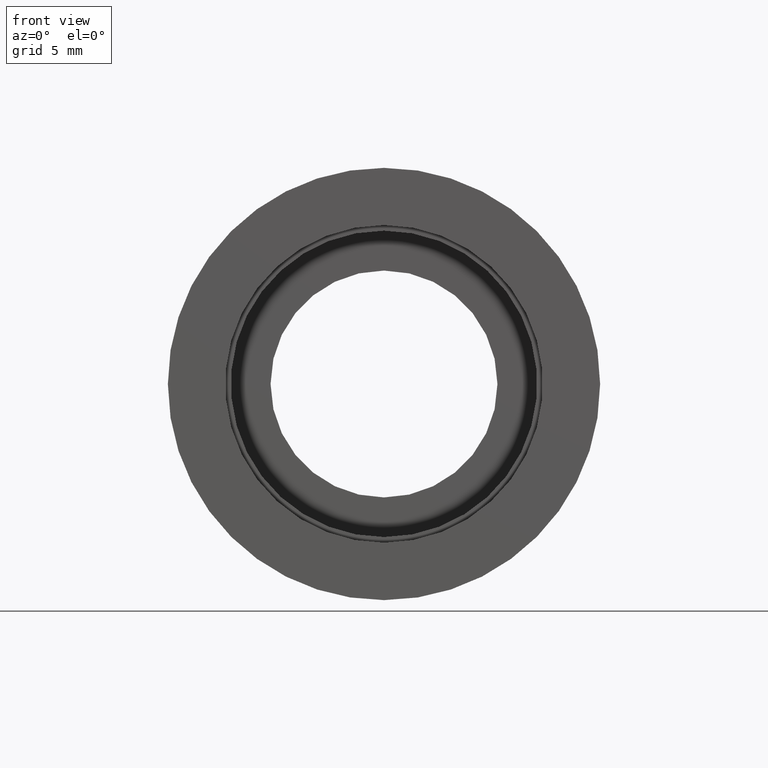
[diagram: clean part render]
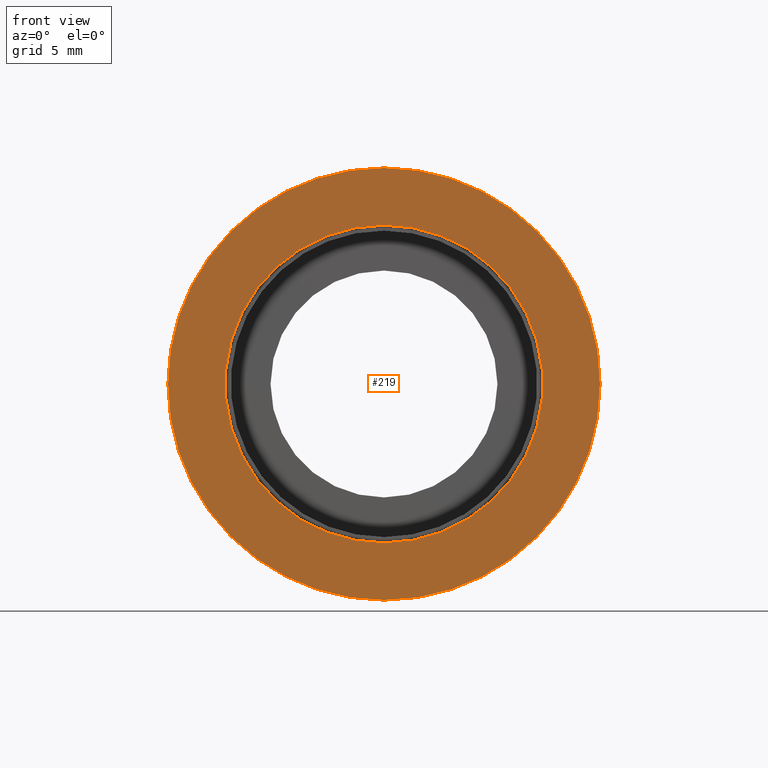
[diagram: same view with one face highlighted and labeled with its STEP entity id]
A machine part, front view. The second image highlights one B-rep face of the part: STEP entity #219.
In plain terms, the highlighted planar face has unit normal (-0, 1, 0).
Its self-contained STEP definition (entity closure, byte-faithful):
#15 = CIRCLE ( 'NONE', #250, 9.525000000000019895 ) ;
#21 = CIRCLE ( 'NONE', #111, 9.525000000000019895 ) ;
#22 = CARTESIAN_POINT ( 'NONE',  ( 0.000000000000000000, -2.775557561562891351E-14, 0.000000000000000000 ) ) ;
#38 = EDGE_LOOP ( 'NONE', ( #317, #242 ) ) ;
#43 = DIRECTION ( 'NONE',  ( 0.000000000000000000, 0.000000000000000000, 1.000000000000000000 ) ) ;
#46 = CARTESIAN_POINT ( 'NONE',  ( 0.000000000000000000, -2.775557561562891351E-14, 0.000000000000000000 ) ) ;
#62 = CARTESIAN_POINT ( 'NONE',  ( 0.000000000000000000, -2.775557561562891351E-14, 7.000000000000020428 ) ) ;
#70 = CIRCLE ( 'NONE', #629, 7.000000000000020428 ) ;
#102 = DIRECTION ( 'NONE',  ( 0.000000000000000000, 0.000000000000000000, 1.000000000000000000 ) ) ;
#111 = AXIS2_PLACEMENT_3D ( 'NONE', #321, #619, #442 ) ;
#121 = CIRCLE ( 'NONE', #189, 7.000000000000020428 ) ;
#122 = DIRECTION ( 'NONE',  ( 0.000000000000000000, 0.000000000000000000, 1.000000000000000000 ) ) ;
#153 = CARTESIAN_POINT ( 'NONE',  ( 8.572527594031496856E-16, -2.775557561562891351E-14, -7.000000000000020428 ) ) ;
#154 = AXIS2_PLACEMENT_3D ( 'NONE', #491, #720, #102 ) ;
#168 = EDGE_CURVE ( 'NONE', #177, #293, #15, .T. ) ;
#177 = VERTEX_POINT ( 'NONE', #198 ) ;
#182 = VERTEX_POINT ( 'NONE', #153 ) ;
#189 = AXIS2_PLACEMENT_3D ( 'NONE', #22, #279, #462 ) ;
#198 = CARTESIAN_POINT ( 'NONE',  ( 0.000000000000000000, -2.775557561562891351E-14, 9.525000000000019895 ) ) ;
#202 = ORIENTED_EDGE ( 'NONE', *, *, #478, .T. ) ;
#219 = ADVANCED_FACE ( 'NONE', ( #265, #433 ), #375, .F. ) ;
#236 = EDGE_LOOP ( 'NONE', ( #202, #361 ) ) ;
#240 = EDGE_CURVE ( 'NONE', #293, #177, #21, .T. ) ;
#242 = ORIENTED_EDGE ( 'NONE', *, *, #240, .F. ) ;
#250 = AXIS2_PLACEMENT_3D ( 'NONE', #46, #546, #43 ) ;
#265 = FACE_OUTER_BOUND ( 'NONE', #38, .T. ) ;
#279 = DIRECTION ( 'NONE',  ( -0.000000000000000000, 1.000000000000000000, -0.000000000000000000 ) ) ;
#293 = VERTEX_POINT ( 'NONE', #446 ) ;
#317 = ORIENTED_EDGE ( 'NONE', *, *, #168, .F. ) ;
#321 = CARTESIAN_POINT ( 'NONE',  ( 0.000000000000000000, -2.775557561562891351E-14, 0.000000000000000000 ) ) ;
#361 = ORIENTED_EDGE ( 'NONE', *, *, #530, .T. ) ;
#375 = PLANE ( 'NONE',  #154 ) ;
#378 = VERTEX_POINT ( 'NONE', #62 ) ;
#433 = FACE_BOUND ( 'NONE', #236, .T. ) ;
#442 = DIRECTION ( 'NONE',  ( 0.000000000000000000, 0.000000000000000000, 1.000000000000000000 ) ) ;
#446 = CARTESIAN_POINT ( 'NONE',  ( 1.166476076187856388E-15, -2.775557561562891351E-14, -9.525000000000019895 ) ) ;
#462 = DIRECTION ( 'NONE',  ( 0.000000000000000000, 0.000000000000000000, 1.000000000000000000 ) ) ;
#478 = EDGE_CURVE ( 'NONE', #378, #182, #70, .T. ) ;
#491 = CARTESIAN_POINT ( 'NONE',  ( 9.525000000000019895, -1.518912785978163891E-14, 0.000000000000000000 ) ) ;
#511 = CARTESIAN_POINT ( 'NONE',  ( 0.000000000000000000, -2.775557561562891351E-14, 0.000000000000000000 ) ) ;
#530 = EDGE_CURVE ( 'NONE', #182, #378, #121, .T. ) ;
#546 = DIRECTION ( 'NONE',  ( -0.000000000000000000, 1.000000000000000000, -0.000000000000000000 ) ) ;
#619 = DIRECTION ( 'NONE',  ( -0.000000000000000000, 1.000000000000000000, -0.000000000000000000 ) ) ;
#629 = AXIS2_PLACEMENT_3D ( 'NONE', #511, #641, #122 ) ;
#641 = DIRECTION ( 'NONE',  ( -0.000000000000000000, 1.000000000000000000, -0.000000000000000000 ) ) ;
#720 = DIRECTION ( 'NONE',  ( -0.000000000000000000, 1.000000000000000000, 0.000000000000000000 ) ) ;